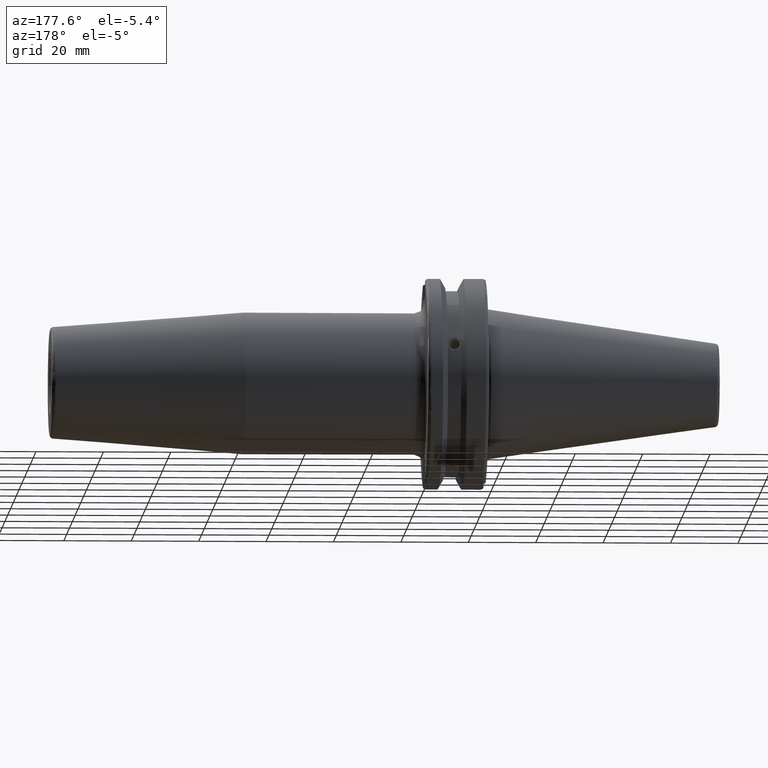
[diagram: clean part render]
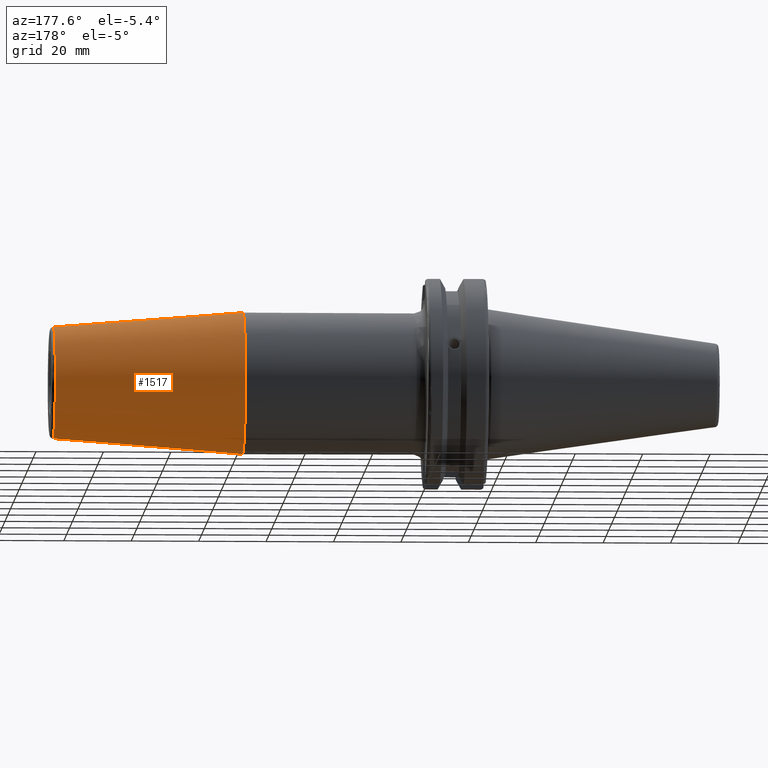
[diagram: same view with one face highlighted and labeled with its STEP entity id]
A machine part, auxiliary view. The second image highlights one B-rep face of the part: STEP entity #1517.
In plain terms, the highlighted conical surface has half-angle 4.5 deg.
Its self-contained STEP definition (entity closure, byte-faithful):
#184=FACE_OUTER_BOUND('',#275,.T.);
#275=EDGE_LOOP('',(#1046,#1047,#1048,#1049,#1050));
#375=LINE('',#2291,#467);
#467=VECTOR('',#1841,18.75);
#559=CIRCLE('',#1633,16.5725268420749);
#560=CIRCLE('',#1634,16.5725268420749);
#562=CIRCLE('',#1638,21.);
#635=VERTEX_POINT('',#2281);
#636=VERTEX_POINT('',#2283);
#638=VERTEX_POINT('',#2290);
#796=EDGE_CURVE('',#635,#636,#559,.T.);
#797=EDGE_CURVE('',#636,#635,#560,.T.);
#799=EDGE_CURVE('',#636,#638,#375,.T.);
#800=EDGE_CURVE('',#638,#638,#562,.T.);
#1046=ORIENTED_EDGE('',*,*,#797,.F.);
#1047=ORIENTED_EDGE('',*,*,#799,.T.);
#1048=ORIENTED_EDGE('',*,*,#800,.T.);
#1049=ORIENTED_EDGE('',*,*,#799,.F.);
#1050=ORIENTED_EDGE('',*,*,#796,.F.);
#1499=CONICAL_SURFACE('',#1637,18.75,0.0785398163397448);
#1517=ADVANCED_FACE('',(#184),#1499,.T.);
#1633=AXIS2_PLACEMENT_3D('',#2284,#1831,#1832);
#1634=AXIS2_PLACEMENT_3D('',#2285,#1833,#1834);
#1637=AXIS2_PLACEMENT_3D('',#2289,#1839,#1840);
#1638=AXIS2_PLACEMENT_3D('',#2292,#1842,#1843);
#1831=DIRECTION('center_axis',(1.,0.,0.));
#1832=DIRECTION('ref_axis',(0.,-1.,3.06161699786838E-17));
#1833=DIRECTION('center_axis',(1.,0.,0.));
#1834=DIRECTION('ref_axis',(0.,-1.,3.06161699786838E-17));
#1839=DIRECTION('center_axis',(-1.,0.,0.));
#1840=DIRECTION('ref_axis',(0.,1.,0.));
#1841=DIRECTION('',(-0.996917333733128,-0.0784590957278449,-9.6084680447101E-18));
#1842=DIRECTION('center_axis',(1.,0.,0.));
#1843=DIRECTION('ref_axis',(0.,0.,-1.));
#2281=CARTESIAN_POINT('',(129.078459095728,-2.02954919509306E-15,16.5725268420749));
#2283=CARTESIAN_POINT('',(129.078459095728,-16.5725268420749,-2.02954919509306E-15));
#2284=CARTESIAN_POINT('Origin',(129.078459095728,0.,-2.53693649386633E-15));
#2285=CARTESIAN_POINT('Origin',(129.078459095728,0.,-2.53693649386633E-15));
#2289=CARTESIAN_POINT('Origin',(101.411039343607,0.,0.));
#2290=CARTESIAN_POINT('',(72.8220786872138,-21.,-2.57175827820944E-15));
#2291=CARTESIAN_POINT('',(101.411039343607,-18.75,-2.29621274840129E-15));
#2292=CARTESIAN_POINT('Origin',(72.8220786872138,0.,0.));